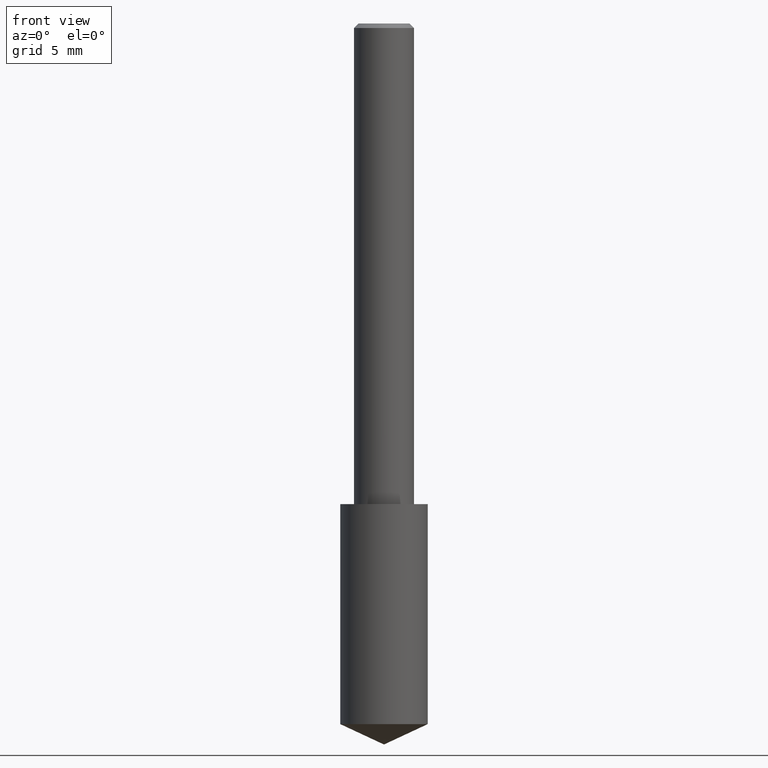
[diagram: clean part render]
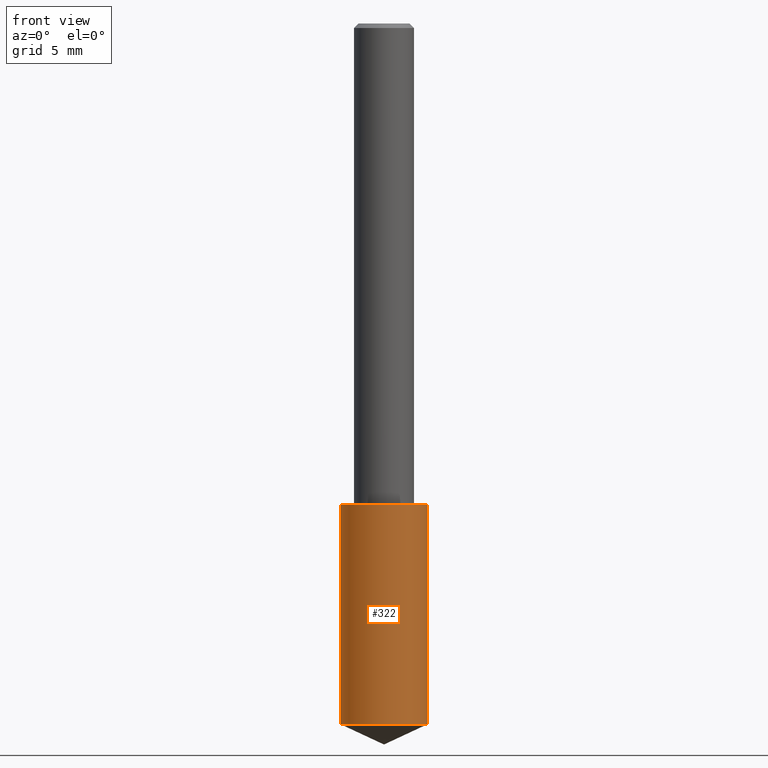
[diagram: same view with one face highlighted and labeled with its STEP entity id]
A machine part, front view. The second image highlights one B-rep face of the part: STEP entity #322.
In plain terms, the highlighted cylindrical surface (partial cylindrical patch) has radius 2.3114 mm, axis along (-0, 0, 1).
Its self-contained STEP definition (entity closure, byte-faithful):
#4 = DIRECTION ( 'NONE',  ( -2.445468806185136877E-29, 3.491481338843145188E-15, 1.000000000000000000 ) ) ;
#5 = VERTEX_POINT ( 'NONE', #217 ) ;
#19 = CARTESIAN_POINT ( 'NONE',  ( -0.09099999999999999756, -2.844887449301455417E-15, -1.000000000000000222 ) ) ;
#33 = EDGE_CURVE ( 'NONE', #5, #96, #332, .T. ) ;
#34 = VECTOR ( 'NONE', #132, 39.37007874015748143 ) ;
#37 = LINE ( 'NONE', #72, #218 ) ;
#41 = AXIS2_PLACEMENT_3D ( 'NONE', #140, #240, #334 ) ;
#45 = CARTESIAN_POINT ( 'NONE',  ( 0.09099999999999999756, -4.126930942512596153E-15, -1.000000000000000222 ) ) ;
#47 = ORIENTED_EDGE ( 'NONE', *, *, #196, .F. ) ;
#64 = EDGE_CURVE ( 'NONE', #96, #103, #37, .T. ) ;
#72 = CARTESIAN_POINT ( 'NONE',  ( 0.09099999999999999756, -4.126930942512596153E-15, -1.000000000000000222 ) ) ;
#75 = DIRECTION ( 'NONE',  ( 1.000000000000000000, -6.982962677686269077E-15, 0.000000000000000000 ) ) ;
#96 = VERTEX_POINT ( 'NONE', #110 ) ;
#103 = VERTEX_POINT ( 'NONE', #45 ) ;
#107 = CARTESIAN_POINT ( 'NONE',  ( 2.445468806185137438E-29, -3.491481338843146371E-15, -1.000000000000000222 ) ) ;
#110 = CARTESIAN_POINT ( 'NONE',  ( 0.09099999999999999756, -5.724514103652857950E-15, -1.457566003107895414 ) ) ;
#130 = AXIS2_PLACEMENT_3D ( 'NONE', #248, #150, #75 ) ;
#132 = DIRECTION ( 'NONE',  ( -2.445468806185136877E-29, 3.491481338843145188E-15, 1.000000000000000000 ) ) ;
#133 = DIRECTION ( 'NONE',  ( -2.445468806185136597E-29, 3.491481338843145583E-15, 1.000000000000000000 ) ) ;
#140 = CARTESIAN_POINT ( 'NONE',  ( 3.564432193556306324E-29, -5.089064499983406985E-15, -1.457566003107895414 ) ) ;
#146 = CYLINDRICAL_SURFACE ( 'NONE', #338, 0.09099999999999999756 ) ;
#150 = DIRECTION ( 'NONE',  ( -2.445468806185136597E-29, 3.491481338843145583E-15, 1.000000000000000000 ) ) ;
#174 = EDGE_LOOP ( 'NONE', ( #47, #183, #321, #251 ) ) ;
#175 = FACE_OUTER_BOUND ( 'NONE', #174, .T. ) ;
#183 = ORIENTED_EDGE ( 'NONE', *, *, #33, .T. ) ;
#196 = EDGE_CURVE ( 'NONE', #5, #228, #257, .T. ) ;
#217 = CARTESIAN_POINT ( 'NONE',  ( -0.09099999999999999756, -4.442470610441716820E-15, -1.457566003107895414 ) ) ;
#218 = VECTOR ( 'NONE', #4, 39.37007874015748143 ) ;
#221 = DIRECTION ( 'NONE',  ( 1.000000000000000000, -6.982962677686263555E-15, 0.000000000000000000 ) ) ;
#226 = CARTESIAN_POINT ( 'NONE',  ( -0.09099999999999999756, -3.643679029871584738E-15, -1.000000000000000222 ) ) ;
#228 = VERTEX_POINT ( 'NONE', #226 ) ;
#240 = DIRECTION ( 'NONE',  ( -2.445468806185136597E-29, 3.491481338843145583E-15, 1.000000000000000000 ) ) ;
#248 = CARTESIAN_POINT ( 'NONE',  ( 2.445468806185136877E-29, -3.491481338843145977E-15, -1.000000000000000222 ) ) ;
#251 = ORIENTED_EDGE ( 'NONE', *, *, #271, .F. ) ;
#256 = CIRCLE ( 'NONE', #130, 0.09099999999999999756 ) ;
#257 = LINE ( 'NONE', #19, #34 ) ;
#271 = EDGE_CURVE ( 'NONE', #228, #103, #256, .T. ) ;
#321 = ORIENTED_EDGE ( 'NONE', *, *, #64, .T. ) ;
#322 = ADVANCED_FACE ( 'NONE', ( #175 ), #146, .T. ) ;
#332 = CIRCLE ( 'NONE', #41, 0.09099999999999999756 ) ;
#334 = DIRECTION ( 'NONE',  ( 1.000000000000000000, -6.982962677686269077E-15, 0.000000000000000000 ) ) ;
#338 = AXIS2_PLACEMENT_3D ( 'NONE', #107, #133, #221 ) ;